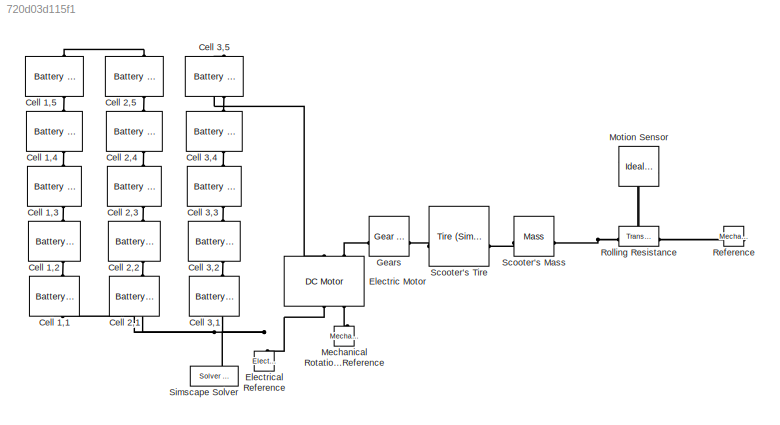
MODEL slx_720d03d115f1
KIND model
CONFIG AbsTol = auto
CONFIG EnableMultiTasking = off
CONFIG FixedStep = auto
CONFIG MaxStep = auto
CONFIG MinStep = auto
CONFIG PostLoadFcn = MdlWorkSpace = get_param('ScooterModelThreeAssembly','modelworkspace');\nassignin(MdlWorkSpace,"SOC0",ones(3,5))\nassignin(MdlWorkSpace,"Tout",20*ones(3,5))\nclear MdlWorkSpace
CONFIG RelTol = 1e-3
CONFIG SampleTimeConstraint = Unconstrained
CONFIG SolverName = VariableStepAuto
CONFIG StartTime = 0.0
CONFIG StopTime = 5000
WORKSPACE source: mxarray member
WORKSPACE R0 = [0.83853 0.94835 0.9162 0.88405 0.85188 0.81973 0.78758 0.75543 0.72329 0.69114 0.65899 0.62684 ... (505 elements, 101x5)]
WORKSPACE SOC = [0 0.01 0.02 0.03 0.04 0.05 0.06 0.07 0.08 0.09 0.1 0.11 ... (101 elements, 1x101)]
WORKSPACE SOC0 = [1 1 0.5 1 1 1 0.5 0.5 1 0.5 0.5 1 ... (15 elements, 3x5)]
WORKSPACE T = [-20 -10 0 25 45]
WORKSPACE Tout = [-18 -18 -18 -18 -18 -18 -18 -18 -18 -18 -18 -18 ... (15 elements, 3x5)]
WORKSPACE V0 = [0.01 0.01 2.91363 3.00304 3.0606 3.09933 3.12978 3.18381 3.23096 3.26469 3.2911 3.31202 ... (505 elements, 101x5)]
BLOCK [Reference] Cell 1,1  REF=batteryecm_lib/Battery
(Table-Based)
  LibrarySourceBlock = ee_lib/Sources/Battery\n(Table-Based)
  NameLocation = right
  SourceBlock = batteryecm_lib/Battery\n(Table-Based)
  SourceType = Battery\n(Table-Based)
BLOCK [Reference] Cell 1,2  REF=batteryecm_lib/Battery
(Table-Based)
  LibrarySourceBlock = ee_lib/Sources/Battery\n(Table-Based)
  NameLocation = right
  SourceBlock = batteryecm_lib/Battery\n(Table-Based)
  SourceType = Battery\n(Table-Based)
BLOCK [Reference] Cell 1,3  REF=batteryecm_lib/Battery
(Table-Based)
  LibrarySourceBlock = ee_lib/Sources/Battery\n(Table-Based)
  NameLocation = right
  SourceBlock = batteryecm_lib/Battery\n(Table-Based)
  SourceType = Battery\n(Table-Based)
BLOCK [Reference] Cell 1,4  REF=batteryecm_lib/Battery
(Table-Based)
  LibrarySourceBlock = ee_lib/Sources/Battery\n(Table-Based)
  NameLocation = right
  SourceBlock = batteryecm_lib/Battery\n(Table-Based)
  SourceType = Battery\n(Table-Based)
BLOCK [Reference] Cell 1,5  REF=batteryecm_lib/Battery
(Table-Based)
  LibrarySourceBlock = ee_lib/Sources/Battery\n(Table-Based)
  NameLocation = right
  SourceBlock = batteryecm_lib/Battery\n(Table-Based)
  SourceType = Battery\n(Table-Based)
BLOCK [Reference] Cell 2,1  REF=batteryecm_lib/Battery
(Table-Based)
  LibrarySourceBlock = ee_lib/Sources/Battery\n(Table-Based)
  NameLocation = right
  SourceBlock = batteryecm_lib/Battery\n(Table-Based)
  SourceType = Battery\n(Table-Based)
BLOCK [Reference] Cell 2,2  REF=batteryecm_lib/Battery
(Table-Based)
  LibrarySourceBlock = ee_lib/Sources/Battery\n(Table-Based)
  NameLocation = right
  SourceBlock = batteryecm_lib/Battery\n(Table-Based)
  SourceType = Battery\n(Table-Based)
BLOCK [Reference] Cell 2,3  REF=batteryecm_lib/Battery
(Table-Based)
  LibrarySourceBlock = ee_lib/Sources/Battery\n(Table-Based)
  NameLocation = right
  SourceBlock = batteryecm_lib/Battery\n(Table-Based)
  SourceType = Battery\n(Table-Based)
BLOCK [Reference] Cell 2,4  REF=batteryecm_lib/Battery
(Table-Based)
  LibrarySourceBlock = ee_lib/Sources/Battery\n(Table-Based)
  NameLocation = right
  SourceBlock = batteryecm_lib/Battery\n(Table-Based)
  SourceType = Battery\n(Table-Based)
BLOCK [Reference] Cell 2,5  REF=batteryecm_lib/Battery
(Table-Based)
  LibrarySourceBlock = ee_lib/Sources/Battery\n(Table-Based)
  NameLocation = right
  SourceBlock = batteryecm_lib/Battery\n(Table-Based)
  SourceType = Battery\n(Table-Based)
BLOCK [Reference] Cell 3,1  REF=batteryecm_lib/Battery
(Table-Based)
  LibrarySourceBlock = ee_lib/Sources/Battery\n(Table-Based)
  NameLocation = right
  SourceBlock = batteryecm_lib/Battery\n(Table-Based)
  SourceType = Battery\n(Table-Based)
BLOCK [Reference] Cell 3,2  REF=batteryecm_lib/Battery
(Table-Based)
  LibrarySourceBlock = ee_lib/Sources/Battery\n(Table-Based)
  NameLocation = right
  SourceBlock = batteryecm_lib/Battery\n(Table-Based)
  SourceType = Battery\n(Table-Based)
BLOCK [Reference] Cell 3,3  REF=batteryecm_lib/Battery
(Table-Based)
  LibrarySourceBlock = ee_lib/Sources/Battery\n(Table-Based)
  NameLocation = right
  SourceBlock = batteryecm_lib/Battery\n(Table-Based)
  SourceType = Battery\n(Table-Based)
BLOCK [Reference] Cell 3,4  REF=batteryecm_lib/Battery
(Table-Based)
  LibrarySourceBlock = ee_lib/Sources/Battery\n(Table-Based)
  NameLocation = right
  SourceBlock = batteryecm_lib/Battery\n(Table-Based)
  SourceType = Battery\n(Table-Based)
BLOCK [Reference] Cell 3,5  REF=batteryecm_lib/Battery
(Table-Based)
  LibrarySourceBlock = ee_lib/Sources/Battery\n(Table-Based)
  NameLocation = right
  SourceBlock = batteryecm_lib/Battery\n(Table-Based)
  SourceType = Battery\n(Table-Based)
BLOCK [Reference] Electric Motor  REF=ee_lib/Electromechanical/Brushed Motors/DC Motor
  NameLocation = right
  SourceBlock = ee_lib/Electromechanical/Brushed Motors/DC Motor
  SourceType = DC Motor
BLOCK [Reference] Electrical Reference  REF=fl_lib/Electrical/Electrical Elements/Electrical Reference
  NameLocation = right
  SourceBlock = fl_lib/Electrical/Electrical Elements/Electrical Reference
  SourceType = Electrical Reference
BLOCK [Reference] Gears  REF=fl_lib/Mechanical/Mechanisms/Gear Box
  NameLocation = top
  SourceBlock = fl_lib/Mechanical/Mechanisms/Gear Box
  SourceType = Gear Box
BLOCK [Reference] Mechanical Rotational Reference  REF=fl_lib/Mechanical/Rotational Elements/Mechanical
Rotational Reference
  NameLocation = right
  SourceBlock = fl_lib/Mechanical/Rotational Elements/Mechanical\nRotational Reference
  SourceType = Mechanical\nRotational Reference
BLOCK [Reference] Motion Sensor  REF=fl_lib/Mechanical/Mechanical Sensors/Ideal Translational
Motion Sensor
  NameLocation = top
  SourceBlock = fl_lib/Mechanical/Mechanical Sensors/Ideal Translational\nMotion Sensor
  SourceType = Ideal Translational\nMotion Sensor
BLOCK [Reference] Reference  REF=fl_lib/Mechanical/Translational
Elements/Mechanical
Translational
Reference
  NameLocation = top
  SourceBlock = fl_lib/Mechanical/Translational\nElements/Mechanical\nTranslational\nReference
  SourceType = Mechanical\nTranslational\nReference
BLOCK [Reference] Rolling Resistance  REF=fl_lib/Mechanical/Translational
Elements/Translational
Friction
  SourceBlock = fl_lib/Mechanical/Translational\nElements/Translational\nFriction
  SourceType = Translational\nFriction
BLOCK [Reference] Scooter's Mass  REF=fl_lib/Mechanical/Translational
Elements/Mass
  NameLocation = top
  SourceBlock = fl_lib/Mechanical/Translational\nElements/Mass
  SourceType = Mass
BLOCK [Reference] Scooter's Tire  REF=sdl_lib/Tires & Vehicles/Tire (Simple)
  NameLocation = top
  SourceBlock = sdl_lib/Tires & Vehicles/Tire (Simple)
  SourceType = Tire (Simple)
BLOCK [Reference] Simscape Solver  REF=nesl_utility/Solver
Configuration
  SourceBlock = nesl_utility/Solver\nConfiguration
  SourceType = Solver\nConfiguration
PLINE Cell 1,1:LConn1 -- Cell 1,2:RConn1
PNET net1: Cell 1,1:RConn1 -- Cell 2,1:RConn1 -- Cell 3,1:RConn1 -- Electric Motor:RConn1 -- Electrical Reference:LConn1 -- Simscape Solver:RConn1
PLINE Cell 1,2:LConn1 -- Cell 1,3:RConn1
PLINE Cell 1,3:LConn1 -- Cell 1,4:RConn1
PLINE Cell 1,4:LConn1 -- Cell 1,5:RConn1
PNET net2: Cell 1,5:LConn1 -- Cell 2,5:LConn1 -- Cell 3,5:LConn1 -- Electric Motor:LConn1
PLINE Cell 2,1:LConn1 -- Cell 2,2:RConn1
PLINE Cell 2,2:LConn1 -- Cell 2,3:RConn1
PLINE Cell 2,3:LConn1 -- Cell 2,4:RConn1
PLINE Cell 2,4:LConn1 -- Cell 2,5:RConn1
PLINE Cell 3,1:LConn1 -- Cell 3,2:RConn1
PLINE Cell 3,2:LConn1 -- Cell 3,3:RConn1
PLINE Cell 3,3:LConn1 -- Cell 3,4:RConn1
PLINE Cell 3,4:LConn1 -- Cell 3,5:RConn1
PLINE Electric Motor:LConn2 -- Gears:LConn1
PLINE Electric Motor:RConn2 -- Mechanical Rotational Reference:LConn1
PLINE Gears:RConn1 -- Scooter's Tire:LConn1
PNET net3: Motion Sensor:LConn1 -- Rolling Resistance:LConn1 -- Scooter's Mass:LConn1
PNET net4: Motion Sensor:RConn1 -- Reference:LConn1 -- Rolling Resistance:RConn1
PLINE Scooter's Mass:RConn1 -- Scooter's Tire:RConn1
note: PNET lines group multi-terminal physical nets as a canonical sorted terminal list (undirected conserving connections); 2-terminal nets keep the pairwise PLINE form
